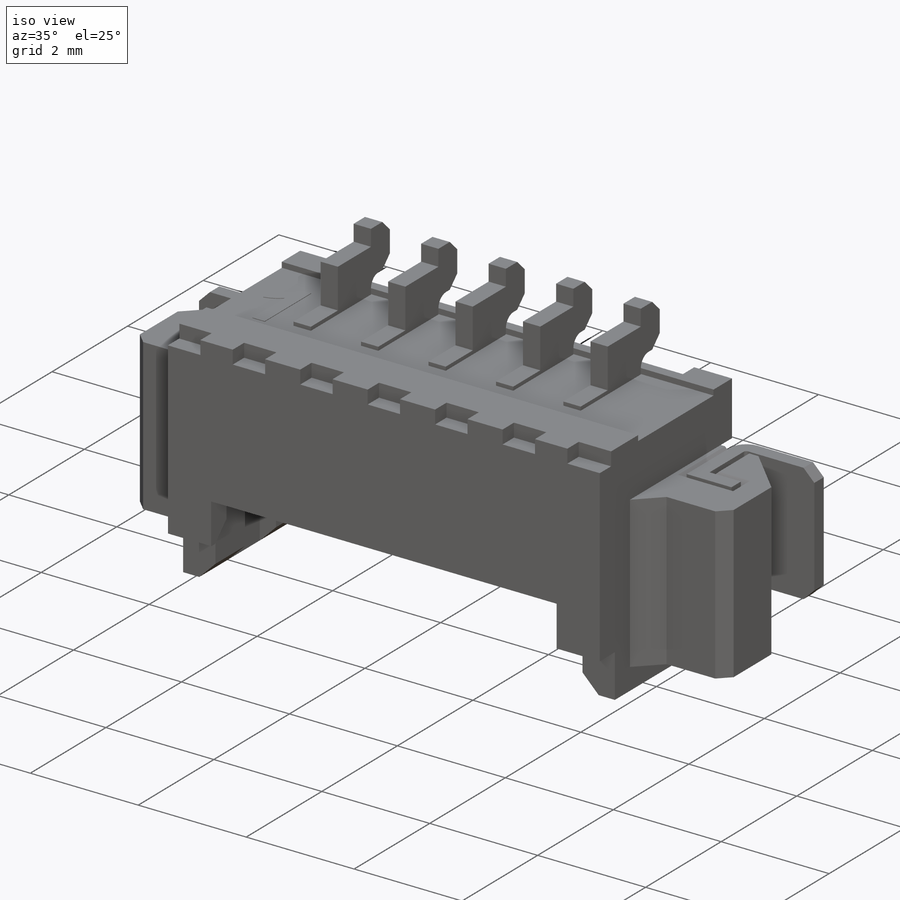
[diagram: iso view]
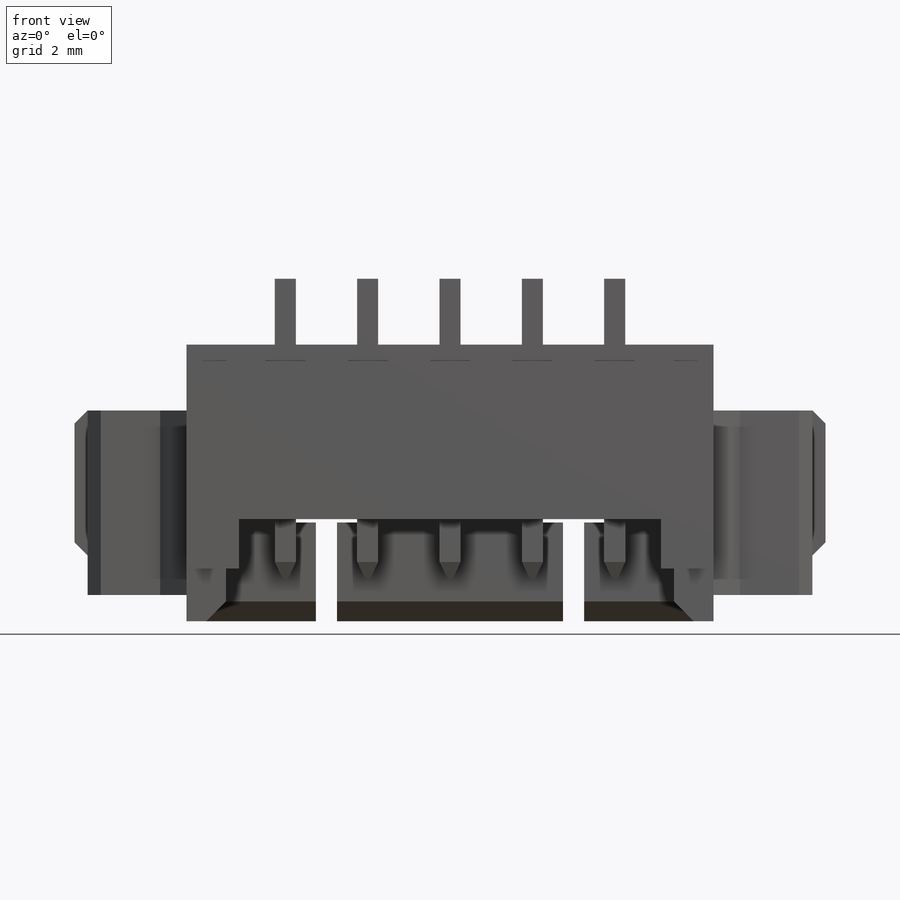
[diagram: front view]
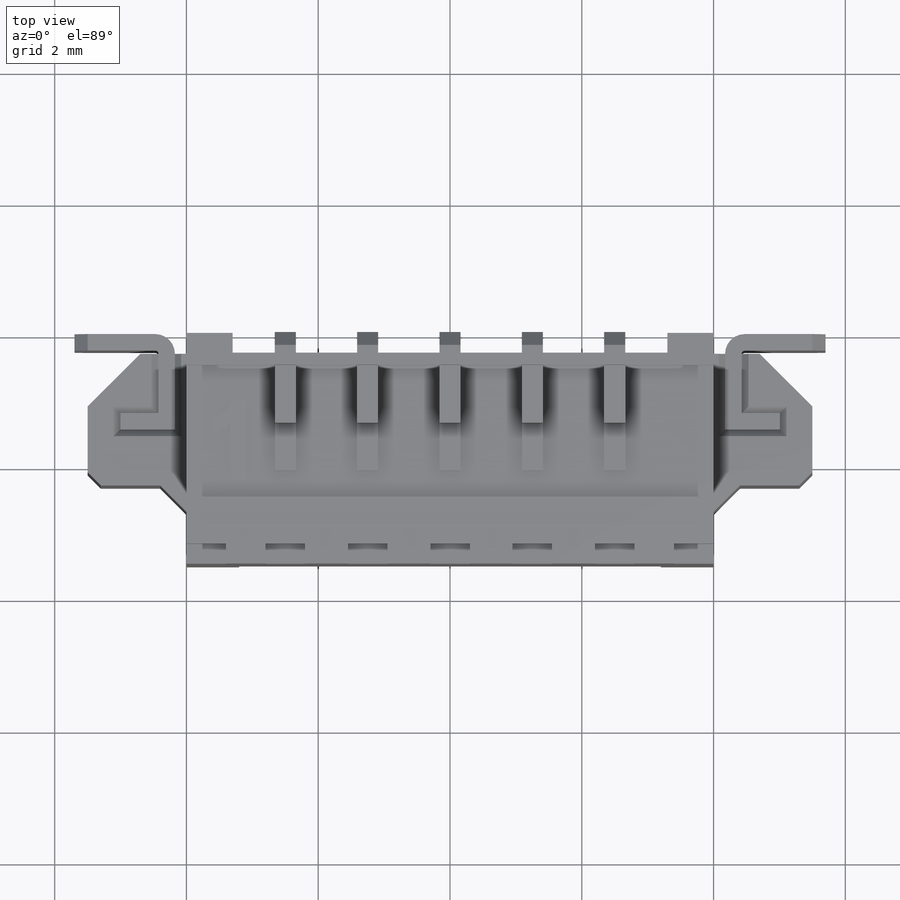
[diagram: top view]
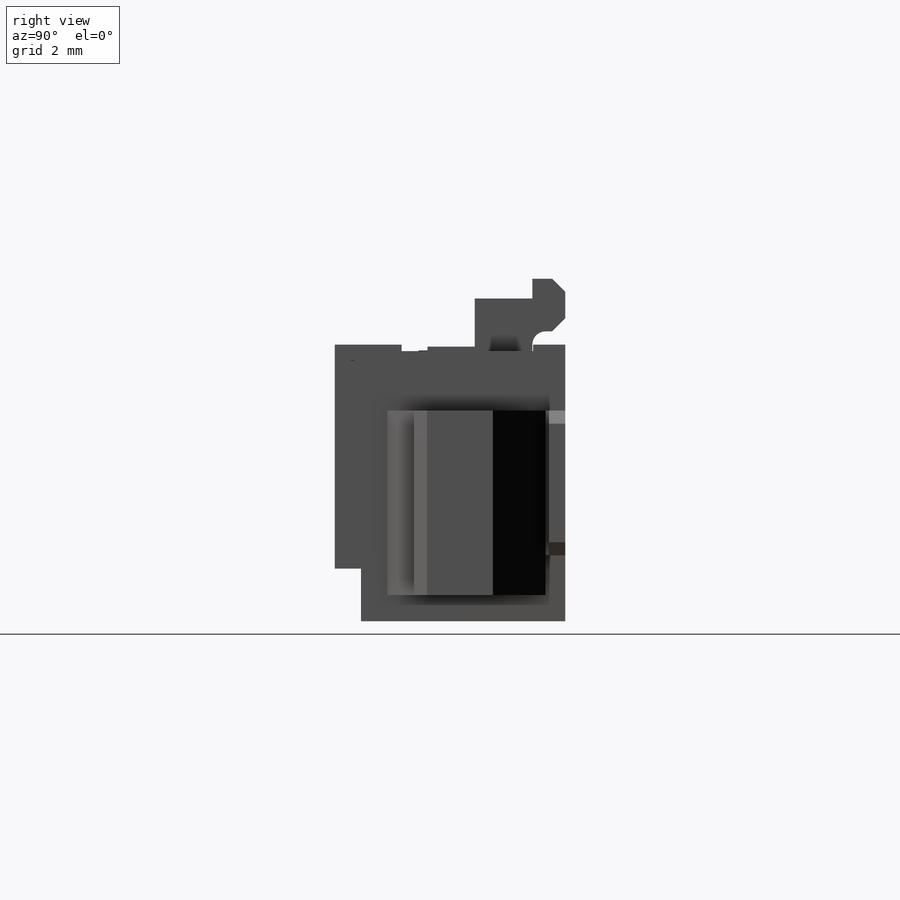
[diagram: right view]
SOLIDWORKS PART (.sldprt)
format: sldprt  version: not decoded by parser v0  size: 1,543,168 bytes
history: native  units: mm
features: sketch x17, extrude x11, cut_extrude x6, plane x3, chamfer x2, pattern_linear x2, material x1 + 1 further entry (+11 scaffold rows collapsed)
feature tree (54):
  scaffold x11  (default folders/planes/origin — collapsed)
  material  "Material <not specified>"
  plane  "Спереди"
  plane  "Сверху"
  plane  "Справа"
  "Таблица параметров"
  sketch  "Эскиз1"  dims[c1.D1=0.6mm c1.D2=0.3mm c1.D3=0.3mm c1.D4=2.8mm c1.D5=3.375mm c2.D1=0.6mm c2.D2=0.3mm c2.D3=0.3mm c2.D4=2.8mm c2.D5=7.75mm c2.D6=0.0mm c3.D5=8.375mm]
  extrude  "Вытянуть1"  Depth=4.2mm
  sketch  "Эскиз2"  dims[D1=0.4mm]
  extrude  "Вытянуть2"  Depth=3.4mm
  sketch  "Эскиз3"  dims[D1=0.2mm]
  extrude  "Вытянуть3"  Depth=3.4mm
  sketch  "Эскиз5"
  extrude  "Вытянуть4"  Depth=2.65mm
  chamfer  "Фаска1"  Distance=0.3mm Angle=45deg
  sketch  "Эскиз6"  dims[D1=1.25mm D2=1.5mm D3=0.465mm D4=0.465mm]
  cut_extrude  "Вытянуть5"  Depth=0.6mm
  sketch  "Эскиз7"
  cut_extrude  "Вытянуть6"  Depth=0.6mm
  sketch  "Эскиз8"
  extrude  "Вытянуть7"  Depth=1.3mm
  sketch  "Эскиз9"  dims[D1=0.7mm D2=1.55mm]
  extrude  "Вытянуть8"  Depth=0.3mm
  sketch  "Эскиз11"  dims[D1=0.32mm D2=0.785mm]
  extrude  "Вытянуть10"  Depth=3mm
  sketch  "Эскиз16"  dims[D1=0.6mm D2=0.925mm]
  cut_extrude  "Вытянуть15"  Depth=0.25mm
  sketch  "Эскиз17"  dims[D1=0.6mm D2=0.6mm]
  cut_extrude  "Вытянуть16"  Depth=0.25mm
  sketch  "Эскиз19"  dims[D1=~0.229003mm D2=~0.858662mm D3=~0.290673mm D4=~1.22933mm D5=~0.174632mm D6=~0.447309mm D7=~0.476533mm D8=0.2189mm D9=0.9mm]
  sketch  "Эскиз22"  dims[D1=0.8mm]
  sketch  "Эскиз24"
  cut_extrude  "Вытянуть28"  Depth=0.1mm
  extrude  "Вытянуть29"  Depth=0.01mm
  extrude  "Вытянуть30"  Depth=0.32mm
  pattern_linear  "Линейный массив1"  Count1=6 Count2=7 Spacing1=1.25mm Spacing2=1.25mm
  pattern_linear  "Линейный массив17"  Count1=7 Count2=6 Spacing1=1.25mm Spacing2=1.25mm
  sketch  "Эскиз26"  dims[c1.D1=1.5mm c1.D2=0.4mm c2.D2=4.25mm c3.D2=0.4mm]
  extrude  "Вытянуть31"  Depth=2.8mm
  sketch  "Эскиз27"  dims[D1=0.18mm D2=0.25mm D3=~0.825794mm]
  cut_extrude  "Вытянуть32"  Depth=0.11mm
  sketch  "Эскиз28"  dims[c1.D1=0.3mm c1.D2=0.05mm c1.D3=0.175mm c1.D4=0.25mm c1.D5=~1.081855mm c1.D6=0.58mm c2.D5=1.275mm]
  extrude  "Вытянуть33"  Depth=2.2mm
  chamfer  "Фаска2"  Distance=0.2mm Angle=45deg
decode coverage: 34 of 38 modeling features carry decoded parameters; 1 rows unclassified (native names shown)
note: ~ marks probable driven/reference dimensions
note: suppression state not decoded; provenance and decode notes live in map.json
